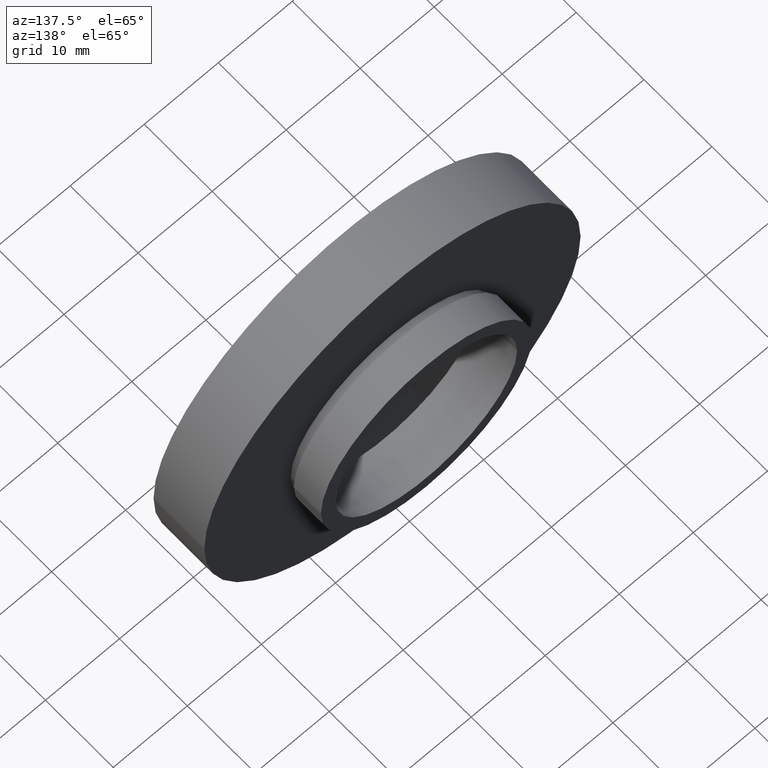
[diagram: clean part render]
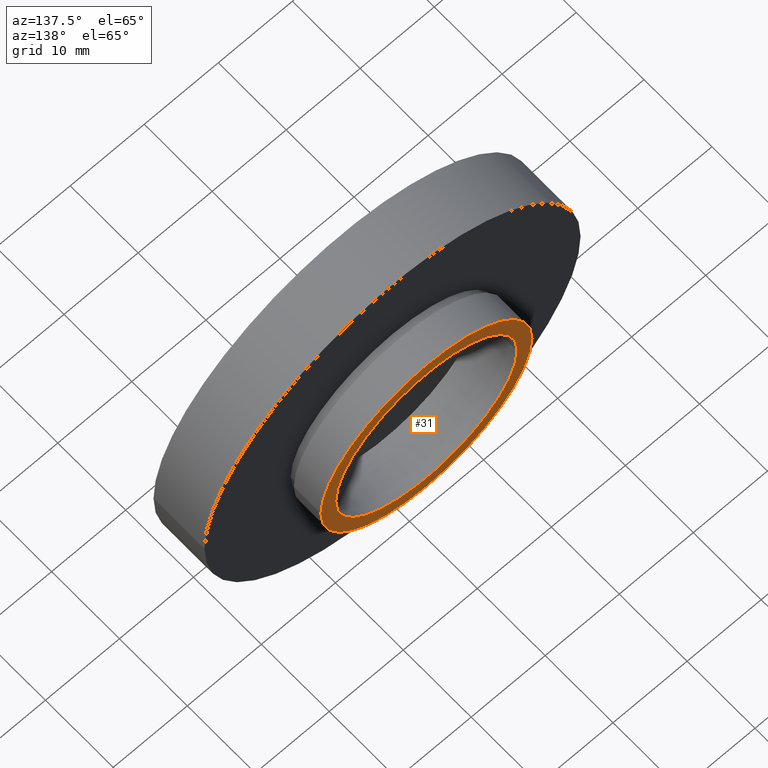
[diagram: same view with one face highlighted and labeled with its STEP entity id]
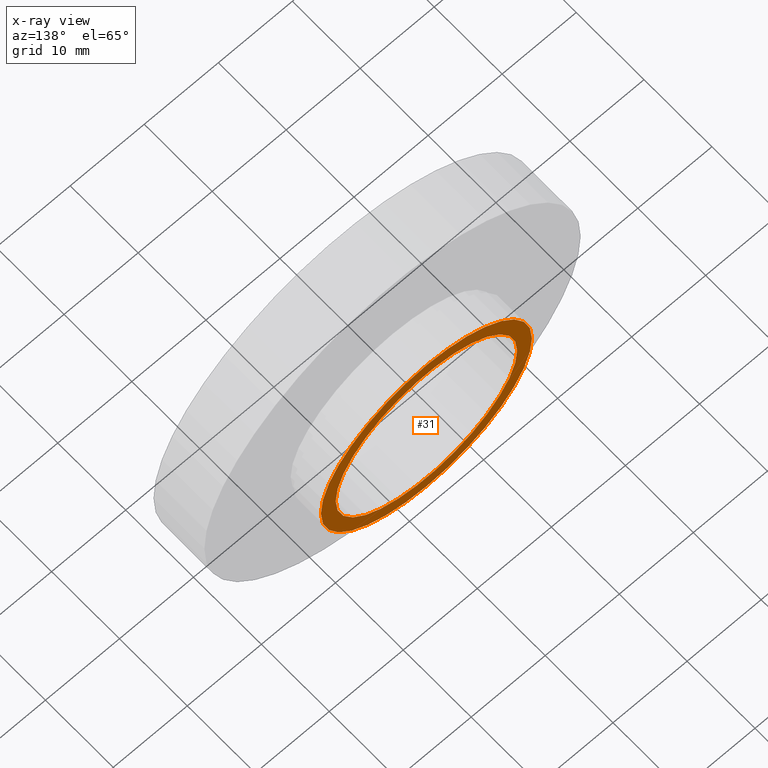
[diagram: x-ray of the same camera — body ghosted, the highlighted face saturated]
A machine part, auxiliary view. The second image highlights one B-rep face of the part: STEP entity #31.
The next image is the same camera in x-ray: the body ghosted, the highlighted face saturated — about 0% of this face is hidden behind the body in this view.
In plain terms, the highlighted planar face has unit normal (0, -1, 0).
Its self-contained STEP definition (entity closure, byte-faithful):
#7 = VERTEX_POINT ( 'NONE', #252 ) ;
#22 = DIRECTION ( 'NONE',  ( -1.224646799147351000E-016, 1.000000000000000000, -0.0000000000000000000 ) ) ;
#23 = ORIENTED_EDGE ( 'NONE', *, *, #117, .T. ) ;
#31 = ADVANCED_FACE ( 'NONE', ( #318, #92 ), #33, .F. ) ;
#33 = PLANE ( 'NONE',  #341 ) ;
#58 = DIRECTION ( 'NONE',  ( -1.224646799147351000E-016, 1.000000000000000000, -0.0000000000000000000 ) ) ;
#64 = DIRECTION ( 'NONE',  ( 1.224646799147351000E-016, -1.000000000000000000, 0.0000000000000000000 ) ) ;
#86 = DIRECTION ( 'NONE',  ( -1.000000000000000000, -1.416100796715760600E-016, 0.0000000000000000000 ) ) ;
#87 = ORIENTED_EDGE ( 'NONE', *, *, #447, .F. ) ;
#92 = FACE_OUTER_BOUND ( 'NONE', #516, .T. ) ;
#105 = CIRCLE ( 'NONE', #392, 14.25000000000000200 ) ;
#117 = EDGE_CURVE ( 'NONE', #417, #269, #208, .T. ) ;
#142 = AXIS2_PLACEMENT_3D ( 'NONE', #519, #342, #180 ) ;
#180 = DIRECTION ( 'NONE',  ( -1.000000000000000000, -1.416100796715760600E-016, 0.0000000000000000000 ) ) ;
#182 = VERTEX_POINT ( 'NONE', #504 ) ;
#194 = ORIENTED_EDGE ( 'NONE', *, *, #253, .T. ) ;
#202 = CARTESIAN_POINT ( 'NONE',  ( -14.25000000000000200, 12.49999999999999500, 0.0000000000000000000 ) ) ;
#208 = CIRCLE ( 'NONE', #571, 14.25000000000000200 ) ;
#224 = ORIENTED_EDGE ( 'NONE', *, *, #280, .F. ) ;
#252 = CARTESIAN_POINT ( 'NONE',  ( -12.25000000000000200, 12.49999999999999500, 0.0000000000000000000 ) ) ;
#253 = EDGE_CURVE ( 'NONE', #269, #417, #105, .T. ) ;
#269 = VERTEX_POINT ( 'NONE', #295 ) ;
#277 = CARTESIAN_POINT ( 'NONE',  ( 5.371323195044474300E-016, 12.49999999999999600, 0.0000000000000000000 ) ) ;
#280 = EDGE_CURVE ( 'NONE', #7, #182, #427, .T. ) ;
#295 = CARTESIAN_POINT ( 'NONE',  ( 14.25000000000000200, 12.49999999999999800, 1.745121688784978600E-015 ) ) ;
#298 = DIRECTION ( 'NONE',  ( -1.224646799147351000E-016, 1.000000000000000000, -0.0000000000000000000 ) ) ;
#318 = FACE_BOUND ( 'NONE', #414, .T. ) ;
#341 = AXIS2_PLACEMENT_3D ( 'NONE', #616, #64, #520 ) ;
#342 = DIRECTION ( 'NONE',  ( -1.224646799147351000E-016, 1.000000000000000000, -0.0000000000000000000 ) ) ;
#353 = CARTESIAN_POINT ( 'NONE',  ( 5.371323195044474300E-016, 12.49999999999999600, 0.0000000000000000000 ) ) ;
#365 = AXIS2_PLACEMENT_3D ( 'NONE', #277, #298, #86 ) ;
#392 = AXIS2_PLACEMENT_3D ( 'NONE', #353, #22, #394 ) ;
#394 = DIRECTION ( 'NONE',  ( -1.000000000000000000, -1.217349807703022400E-016, 0.0000000000000000000 ) ) ;
#414 = EDGE_LOOP ( 'NONE', ( #224, #87 ) ) ;
#417 = VERTEX_POINT ( 'NONE', #202 ) ;
#427 = CIRCLE ( 'NONE', #365, 12.25000000000000200 ) ;
#447 = EDGE_CURVE ( 'NONE', #182, #7, #509, .T. ) ;
#489 = CARTESIAN_POINT ( 'NONE',  ( 5.371323195044474300E-016, 12.49999999999999600, 0.0000000000000000000 ) ) ;
#504 = CARTESIAN_POINT ( 'NONE',  ( 12.25000000000000400, 12.49999999999999800, 1.500192328955508100E-015 ) ) ;
#509 = CIRCLE ( 'NONE', #142, 12.25000000000000200 ) ;
#516 = EDGE_LOOP ( 'NONE', ( #23, #194 ) ) ;
#519 = CARTESIAN_POINT ( 'NONE',  ( 5.371323195044474300E-016, 12.49999999999999600, 0.0000000000000000000 ) ) ;
#520 = DIRECTION ( 'NONE',  ( 1.000000000000000000, 1.224646799147351000E-016, 0.0000000000000000000 ) ) ;
#541 = DIRECTION ( 'NONE',  ( -1.000000000000000000, -1.217349807703022400E-016, 0.0000000000000000000 ) ) ;
#571 = AXIS2_PLACEMENT_3D ( 'NONE', #489, #58, #541 ) ;
#616 = CARTESIAN_POINT ( 'NONE',  ( 12.25000000000000200, 12.49999999999999800, 0.0000000000000000000 ) ) ;